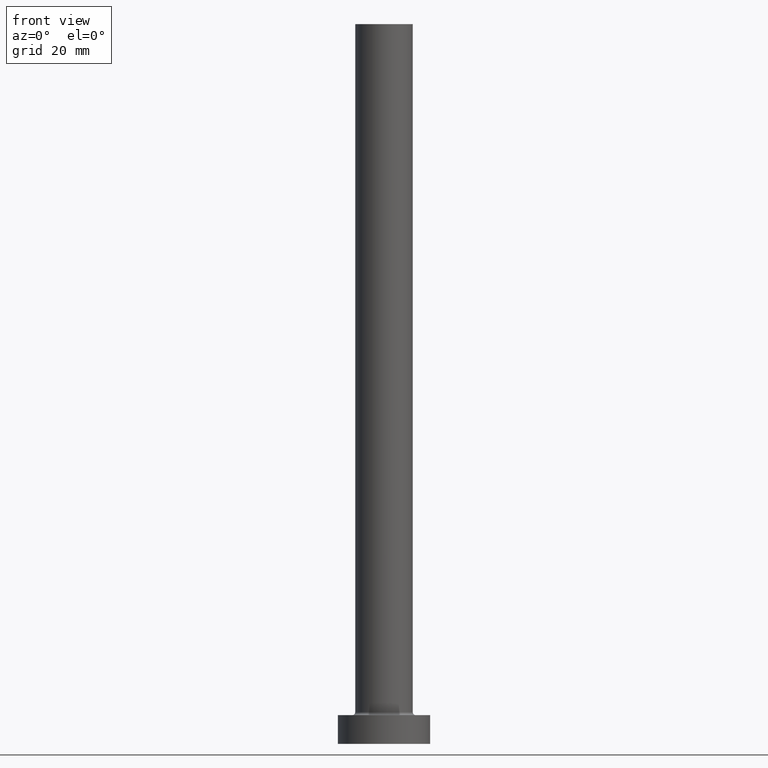
[diagram: clean part render]
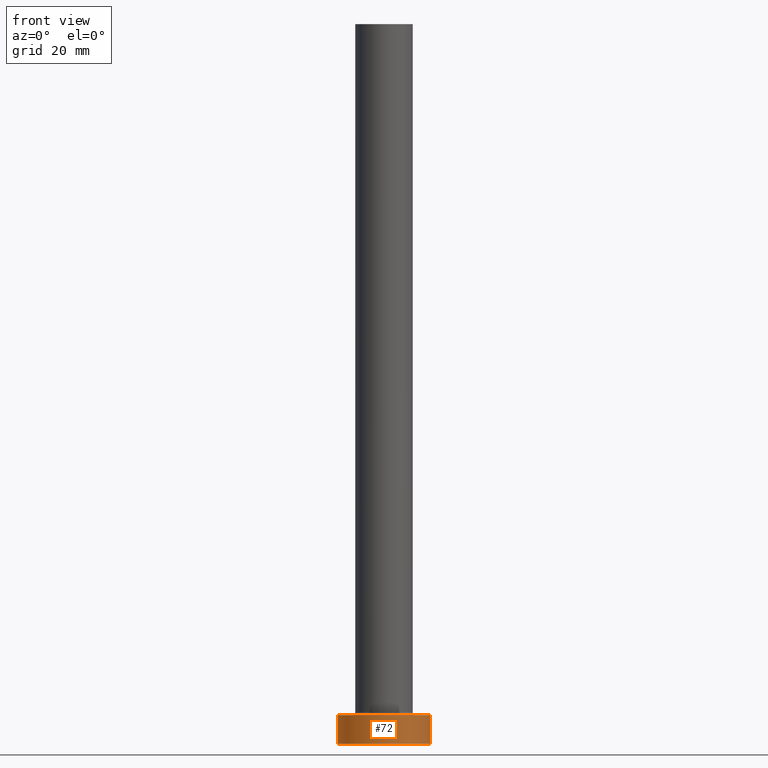
[diagram: same view with one face highlighted and labeled with its STEP entity id]
A machine part, front view. The second image highlights one B-rep face of the part: STEP entity #72.
In plain terms, the highlighted cylindrical surface (partial cylindrical patch) has radius 8 mm, axis along (-0, -0, -1).
Its self-contained STEP definition (entity closure, byte-faithful):
#1 = CARTESIAN_POINT ( 'NONE',  ( -8.000000000000000000, 0.000000000000000000, 0.000000000000000000 ) ) ;
#57 = AXIS2_PLACEMENT_3D ( 'NONE', #394, #178, #366 ) ;
#59 = AXIS2_PLACEMENT_3D ( 'NONE', #222, #440, #150 ) ;
#68 = VECTOR ( 'NONE', #197, 1000.000000000000000 ) ;
#72 = ADVANCED_FACE ( 'NONE', ( #214 ), #83, .T. ) ;
#83 = CYLINDRICAL_SURFACE ( 'NONE', #57, 8.000000000000000000 ) ;
#106 = EDGE_LOOP ( 'NONE', ( #125, #362, #438, #375 ) ) ;
#116 = CIRCLE ( 'NONE', #171, 8.000000000000000000 ) ;
#125 = ORIENTED_EDGE ( 'NONE', *, *, #185, .F. ) ;
#126 = CARTESIAN_POINT ( 'NONE',  ( -8.000000000000000000, 0.000000000000000000, 5.000000000000000000 ) ) ;
#146 = CARTESIAN_POINT ( 'NONE',  ( 0.000000000000000000, 0.000000000000000000, 5.000000000000000000 ) ) ;
#150 = DIRECTION ( 'NONE',  ( 1.000000000000000000, 0.000000000000000000, 0.000000000000000000 ) ) ;
#152 = EDGE_CURVE ( 'NONE', #411, #275, #249, .T. ) ;
#156 = CARTESIAN_POINT ( 'NONE',  ( 8.000000000000000000, 9.797174393178825657E-16, 0.000000000000000000 ) ) ;
#167 = EDGE_CURVE ( 'NONE', #429, #347, #116, .T. ) ;
#171 = AXIS2_PLACEMENT_3D ( 'NONE', #146, #436, #286 ) ;
#178 = DIRECTION ( 'NONE',  ( -0.000000000000000000, -0.000000000000000000, -1.000000000000000000 ) ) ;
#185 = EDGE_CURVE ( 'NONE', #347, #275, #254, .T. ) ;
#197 = DIRECTION ( 'NONE',  ( -0.000000000000000000, -0.000000000000000000, -1.000000000000000000 ) ) ;
#214 = FACE_OUTER_BOUND ( 'NONE', #106, .T. ) ;
#219 = DIRECTION ( 'NONE',  ( -0.000000000000000000, -0.000000000000000000, -1.000000000000000000 ) ) ;
#222 = CARTESIAN_POINT ( 'NONE',  ( 0.000000000000000000, 0.000000000000000000, 0.000000000000000000 ) ) ;
#234 = EDGE_CURVE ( 'NONE', #429, #411, #415, .T. ) ;
#249 = CIRCLE ( 'NONE', #59, 8.000000000000000000 ) ;
#254 = LINE ( 'NONE', #400, #334 ) ;
#275 = VERTEX_POINT ( 'NONE', #156 ) ;
#286 = DIRECTION ( 'NONE',  ( 1.000000000000000000, 0.000000000000000000, 0.000000000000000000 ) ) ;
#311 = CARTESIAN_POINT ( 'NONE',  ( -8.000000000000000000, 0.000000000000000000, 5.000000000000000000 ) ) ;
#334 = VECTOR ( 'NONE', #219, 1000.000000000000000 ) ;
#347 = VERTEX_POINT ( 'NONE', #367 ) ;
#362 = ORIENTED_EDGE ( 'NONE', *, *, #167, .F. ) ;
#366 = DIRECTION ( 'NONE',  ( -1.000000000000000000, 0.000000000000000000, 0.000000000000000000 ) ) ;
#367 = CARTESIAN_POINT ( 'NONE',  ( 8.000000000000000000, 9.797174393178825657E-16, 5.000000000000000000 ) ) ;
#375 = ORIENTED_EDGE ( 'NONE', *, *, #152, .T. ) ;
#394 = CARTESIAN_POINT ( 'NONE',  ( 0.000000000000000000, 0.000000000000000000, 5.000000000000000000 ) ) ;
#400 = CARTESIAN_POINT ( 'NONE',  ( 8.000000000000000000, 9.797174393178825657E-16, 5.000000000000000000 ) ) ;
#411 = VERTEX_POINT ( 'NONE', #1 ) ;
#415 = LINE ( 'NONE', #126, #68 ) ;
#429 = VERTEX_POINT ( 'NONE', #311 ) ;
#436 = DIRECTION ( 'NONE',  ( 0.000000000000000000, 0.000000000000000000, 1.000000000000000000 ) ) ;
#438 = ORIENTED_EDGE ( 'NONE', *, *, #234, .T. ) ;
#440 = DIRECTION ( 'NONE',  ( 0.000000000000000000, 0.000000000000000000, 1.000000000000000000 ) ) ;